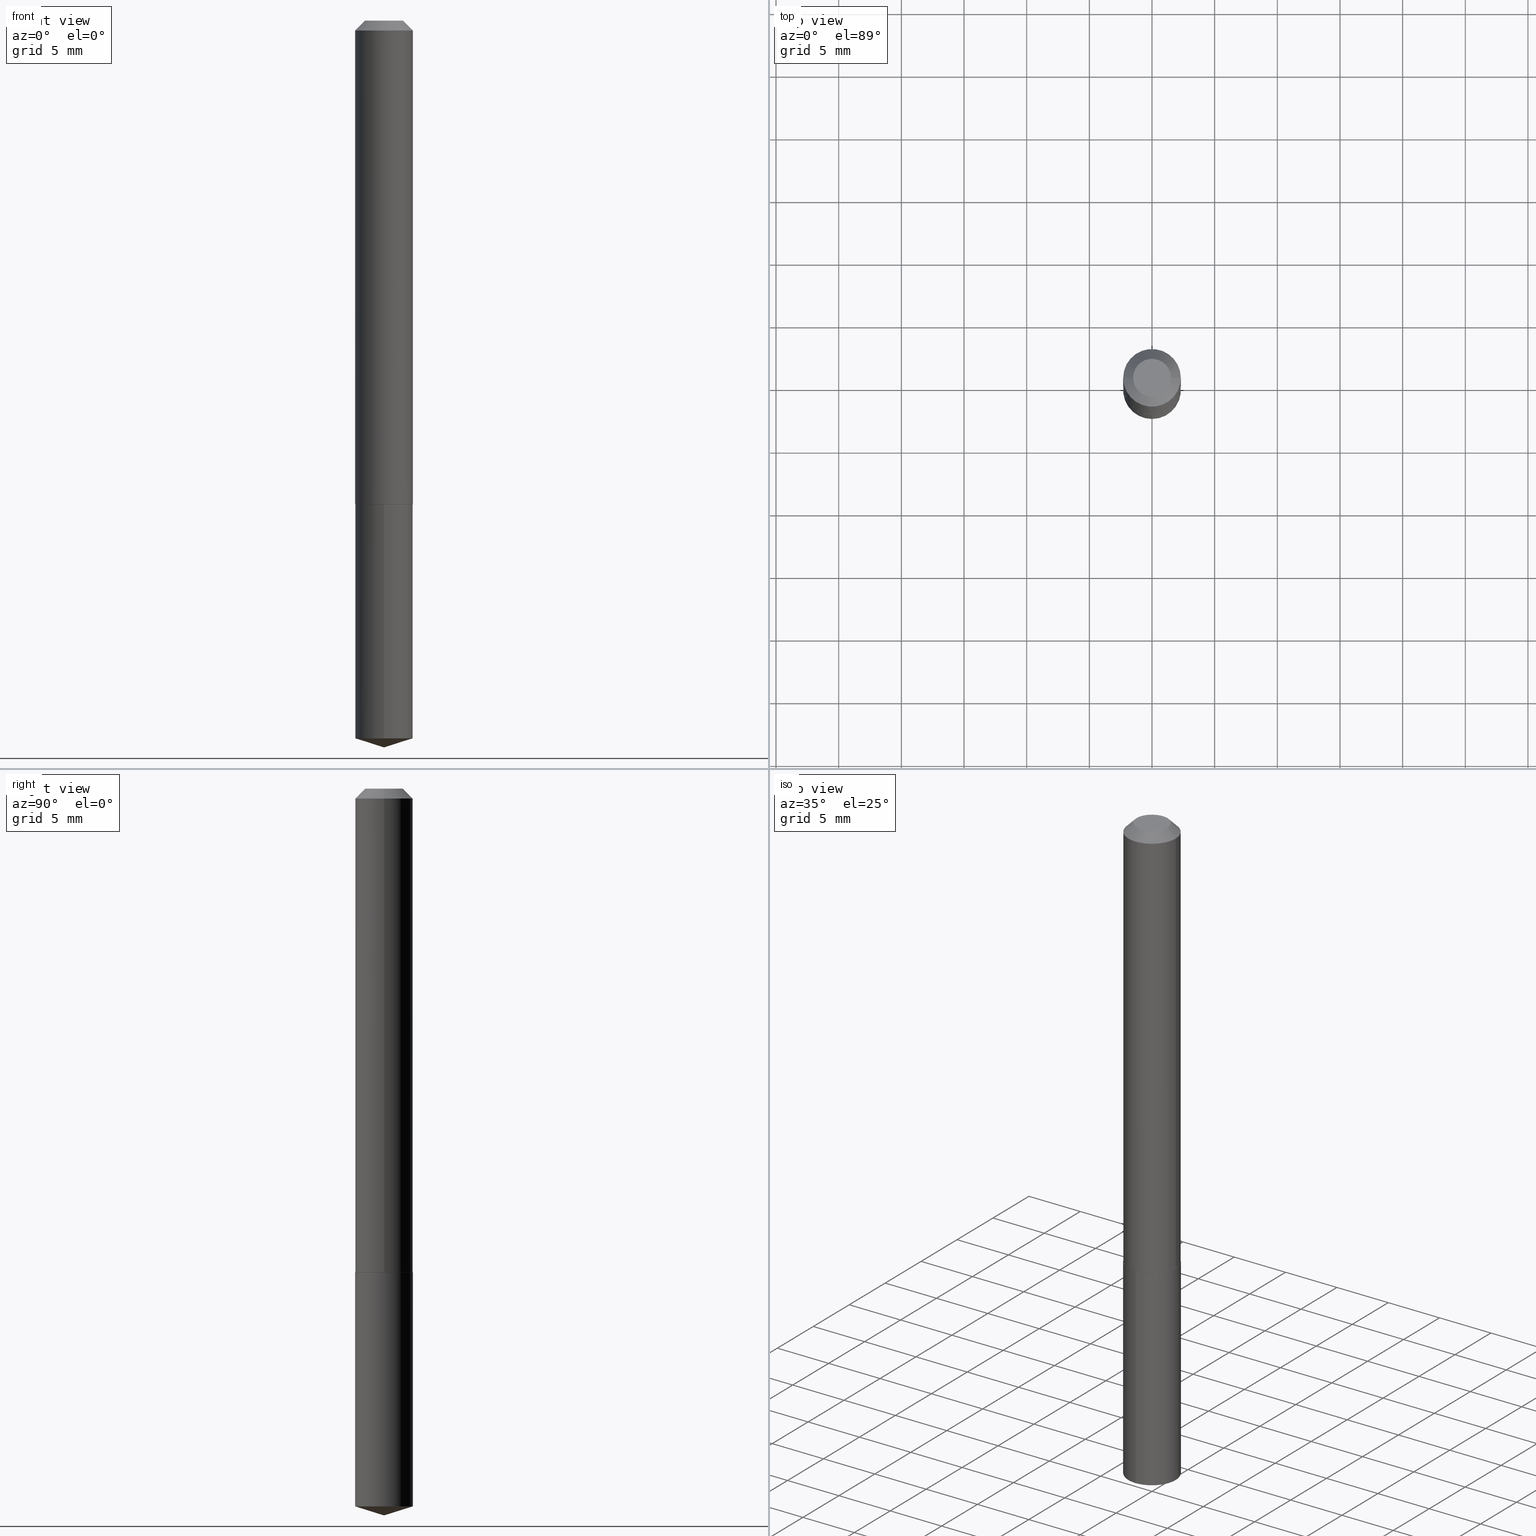
[diagram: canonical four-view strip — front | top / right | iso, engineering-drawing reading convention]
A machine part, canonical four-view strip (front | top / right | iso — engineering-drawing reading convention). The complete STEP part file that produces these views, byte-faithful:
ISO-10303-21;
HEADER;
FILE_DESCRIPTION (( 'STEP AP203' ),
    '1' );
FILE_NAME ('62103.STEP',
    '2024-04-23T06:00:47',
    ( '' ),
    ( '' ),
    'SwSTEP 2.0',
    'SolidWorks 2023',
    '' );
FILE_SCHEMA (( 'CONFIG_CONTROL_DESIGN' ));
ENDSEC;

DATA;
#1 = CALENDAR_DATE ( 2024, 23, 4 ) ;
#2 = CC_DESIGN_DATE_AND_TIME_ASSIGNMENT ( #252, #343, ( #349 ) ) ;
#3 = AXIS2_PLACEMENT_3D ( 'NONE', #21, #150, #62 ) ;
#4 = SHAPE_DEFINITION_REPRESENTATION ( #245, #382 ) ;
#5 = CARTESIAN_POINT ( 'NONE',  ( -9.020234421370649252E-28, 1.301912789641920276E-13, 37.08657874015747780 ) ) ;
#6 = EDGE_LOOP ( 'NONE', ( #344, #170 ) ) ;
#7 = AXIS2_PLACEMENT_3D ( 'NONE', #187, #259, #229 ) ;
#8 = EDGE_CURVE ( 'NONE', #370, #76, #227, .T. ) ;
#9 = EDGE_LOOP ( 'NONE', ( #274, #10, #50, #130 ) ) ;
#10 = ORIENTED_EDGE ( 'NONE', *, *, #255, .F. ) ;
#11 = VERTEX_POINT ( 'NONE', #83 ) ;
#12 = AXIS2_PLACEMENT_3D ( 'NONE', #263, #208, #207 ) ;
#13 = AXIS2_PLACEMENT_3D ( 'NONE', #107, #120, #205 ) ;
#14 = DIRECTION ( 'NONE',  ( -2.432731830762379629E-29, 3.509721412592153849E-15, 1.000000000000000000 ) ) ;
#15 = EDGE_LOOP ( 'NONE', ( #336, #374 ) ) ;
#16 = EDGE_CURVE ( 'NONE', #340, #366, #272, .T. ) ;
#17 = PLANE ( 'NONE',  #334 ) ;
#18 = CARTESIAN_POINT ( 'NONE',  ( 3.715156210356459952E-29, -5.304258449970507858E-15, -1.519200000000000328 ) ) ;
#19 = FACE_OUTER_BOUND ( 'NONE', #362, .T. ) ;
#20 = CARTESIAN_POINT ( 'NONE',  ( -0.09055000000000000548, -2.063287173673906046E-15, -0.03125000000000020123 ) ) ;
#21 = CARTESIAN_POINT ( 'NONE',  ( 0.000000000000000000, 0.000000000000000000, 0.000000000000000000 ) ) ;
#22 = APPROVAL_PERSON_ORGANIZATION ( #390, #88, #299 ) ;
#23 = CARTESIAN_POINT ( 'NONE',  ( 0.000000000000000000, 0.000000000000000000, 0.000000000000000000 ) ) ;
#24 = ADVANCED_FACE ( 'NONE', ( #235 ), #56, .T. ) ;
#25 = SECURITY_CLASSIFICATION ( '', '', #196 ) ;
#26 = DIRECTION ( 'NONE',  ( 1.000000000000000000, -6.982962677686272233E-15, 0.000000000000000000 ) ) ;
#27 = LENGTH_MEASURE_WITH_UNIT ( LENGTH_MEASURE( 0.02539999999999999897 ), #155 );
#28 = CARTESIAN_POINT ( 'NONE',  ( 3.715156210356459952E-29, -5.304258449970507858E-15, -1.519200000000000328 ) ) ;
#29 = CARTESIAN_POINT ( 'NONE',  ( 6.433964472308258789E-16, 0.09054999999999470417, -1.519700000000000495 ) ) ;
#30 = LINE ( 'NONE', #146, #309 ) ;
#31 = CLOSED_SHELL ( 'NONE', ( #361, #24, #313, #185, #49, #306, #147, #301 ) ) ;
#32 = LINE ( 'NONE', #99, #193 ) ;
#33 = VECTOR ( 'NONE', #266, 39.37007874015748143 ) ;
#34 = ADVANCED_FACE ( 'NONE', ( #346 ), #119, .T. ) ;
#35 = ORIENTED_EDGE ( 'NONE', *, *, #159, .F. ) ;
#36 = DATE_AND_TIME ( #1, #292 ) ;
#37 = DIRECTION ( 'NONE',  ( -2.445468806185136597E-29, 3.491481338843145583E-15, 1.000000000000000000 ) ) ;
#38 = DATE_TIME_ROLE ( 'classification_date' ) ;
#39 = ORIENTED_EDGE ( 'NONE', *, *, #212, .T. ) ;
#40 = CC_DESIGN_PERSON_AND_ORGANIZATION_ASSIGNMENT ( #202, #222, ( #303 ) ) ;
#41 = APPROVAL_STATUS ( 'not_yet_approved' ) ;
#42 = ORIENTED_EDGE ( 'NONE', *, *, #212, .F. ) ;
#43 = CC_DESIGN_APPROVAL ( #67, ( #25 ) ) ;
#44 = PERSON_AND_ORGANIZATION ( #91, #253 ) ;
#45 = ORIENTED_EDGE ( 'NONE', *, *, #65, .F. ) ;
#46 = DIRECTION ( 'NONE',  ( -2.432731830762379629E-29, 3.509721412592153849E-15, 1.000000000000000000 ) ) ;
#47 = EDGE_LOOP ( 'NONE', ( #254, #278, #338, #140 ) ) ;
#48 = PERSON_AND_ORGANIZATION ( #91, #253 ) ;
#49 = ADVANCED_FACE ( 'NONE', ( #204 ), #126, .T. ) ;
#50 = ORIENTED_EDGE ( 'NONE', *, *, #220, .T. ) ;
#51 = CONICAL_SURFACE ( 'NONE', #224, 0.09055000000000000548, 0.7853981633974456145 ) ;
#52 = DIRECTION ( 'NONE',  ( -2.445468806185136597E-29, 3.491481338843145583E-15, 1.000000000000000000 ) ) ;
#53 = CARTESIAN_POINT ( 'NONE',  ( -6.323072704644543931E-16, -0.09055000000000532068, -1.519699999999999829 ) ) ;
#54 = DIRECTION ( 'NONE',  ( 1.000000000000000000, -6.982962677686272233E-15, 0.000000000000000000 ) ) ;
#55 = LINE ( 'NONE', #184, #33 ) ;
#56 = CYLINDRICAL_SURFACE ( 'NONE', #371, 0.09055000000000011651 ) ;
#57 =( NAMED_UNIT ( * ) SI_UNIT ( $, .STERADIAN. ) SOLID_ANGLE_UNIT ( ) );
#58 = DIRECTION ( 'NONE',  ( -2.432731830762379629E-29, 3.509721412592153455E-15, 1.000000000000000000 ) ) ;
#59 = CARTESIAN_POINT ( 'NONE',  ( 2.328484636944500097E-46, -3.324458949184895393E-32, -9.521628863370667050E-18 ) ) ;
#60 = DIRECTION ( 'NONE',  ( 2.445468806185136597E-29, -3.491481338843145583E-15, -1.000000000000000000 ) ) ;
#61 = PLANE ( 'NONE',  #7 ) ;
#62 = DIRECTION ( 'NONE',  ( 1.000000000000000000, -6.982962677686265922E-15, 4.876176775795935232E-29 ) ) ;
#63 = DIRECTION ( 'NONE',  ( 1.000000000000000000, -6.982962677686267499E-15, 4.878054160638754682E-29 ) ) ;
#64 = DIRECTION ( 'NONE',  ( -2.445468806185136597E-29, 3.491481338843145583E-15, 1.000000000000000000 ) ) ;
#65 = EDGE_CURVE ( 'NONE', #136, #366, #265, .T. ) ;
#66 = AXIS2_PLACEMENT_3D ( 'NONE', #96, #14, #286 ) ;
#67 = APPROVAL ( #41, 'UNSPECIFIED' ) ;
#68 = PERSON_AND_ORGANIZATION ( #91, #253 ) ;
#69 = CARTESIAN_POINT ( 'NONE',  ( 4.656969273889000194E-46, -6.648917898369790786E-32, -1.904325772674133410E-17 ) ) ;
#70 = CIRCLE ( 'NONE', #248, 0.09055000000000001936 ) ;
#71 = COORDINATED_UNIVERSAL_TIME_OFFSET ( 5, 0, .BEHIND. ) ;
#72 = VERTEX_POINT ( 'NONE', #353 ) ;
#73 = PERSON_AND_ORGANIZATION ( #91, #253 ) ;
#74 = ORIENTED_EDGE ( 'NONE', *, *, #159, .T. ) ;
#75 = EDGE_CURVE ( 'NONE', #72, #136, #182, .T. ) ;
#76 = VERTEX_POINT ( 'NONE', #386 ) ;
#77 = DIMENSIONAL_EXPONENTS ( 1.000000000000000000, 0.000000000000000000, 0.000000000000000000, 0.000000000000000000, 0.000000000000000000, 0.000000000000000000, 0.000000000000000000 ) ;
#78 = ORIENTED_EDGE ( 'NONE', *, *, #335, .F. ) ;
#79 = APPROVAL_DATE_TIME ( #279, #198 ) ;
#80 = EDGE_CURVE ( 'NONE', #11, #76, #84, .T. ) ;
#81 = ORIENTED_EDGE ( 'NONE', *, *, #276, .F. ) ;
#82 = CARTESIAN_POINT ( 'NONE',  ( 0.09005000000000031035, -5.934819979765579402E-15, -1.519700000000000273 ) ) ;
#83 = CARTESIAN_POINT ( 'NONE',  ( -0.09055000000000021365, -4.660862002739735424E-15, -1.519200000000000328 ) ) ;
#84 = CIRCLE ( 'NONE', #237, 0.09055000000000021365 ) ;
#85 = CONICAL_SURFACE ( 'NONE', #13, 124.8659371009187282, 1.265363707695900120 ) ;
#86 =( CONVERSION_BASED_UNIT ( 'INCH', #27 ) LENGTH_UNIT ( ) NAMED_UNIT ( #77 ) );
#87 = LINE ( 'NONE', #267, #162 ) ;
#88 = APPROVAL ( #238, 'UNSPECIFIED' ) ;
#89 = CYLINDRICAL_SURFACE ( 'NONE', #365, 0.09055000000000000548 ) ;
#90 = DIRECTION ( 'NONE',  ( -2.432731830762379629E-29, 3.509721412592153849E-15, 1.000000000000000000 ) ) ;
#91 = PERSON ( 'UNSPECIFIED', 'UNSPECIFIED', 'UNSPECIFIED', ('UNSPECIFIED'), ('UNSPECIFIED'), ('UNSPECIFIED') ) ;
#92 = CARTESIAN_POINT ( 'NONE',  ( 7.642090019328600035E-31, -1.091087918388489897E-16, -0.03125000000000020123 ) ) ;
#93 = CARTESIAN_POINT ( 'NONE',  ( 3.716378944759552193E-29, -5.306004190639928573E-15, -1.519700000000000273 ) ) ;
#94 = PLANE ( 'NONE',  #165 ) ;
#95 = LOCAL_TIME ( 2, 0, 47.00000000000000000, #135 ) ;
#96 = CARTESIAN_POINT ( 'NONE',  ( 3.716378944759552193E-29, -5.306004190639928573E-15, -1.519700000000000273 ) ) ;
#97 = DIRECTION ( 'NONE',  ( -6.982962677686266711E-15, -1.000000000000000000, 3.016949744521549444E-15 ) ) ;
#98 = DIRECTION ( 'NONE',  ( -6.982962677686266711E-15, -1.000000000000000000, 3.016949744521549049E-15 ) ) ;
#99 = CARTESIAN_POINT ( 'NONE',  ( 0.09055000000000000548, -7.303268855370611839E-16, -0.03125000000000020123 ) ) ;
#100 = CARTESIAN_POINT ( 'NONE',  ( 3.715156210356459952E-29, -5.304258449970507858E-15, -1.519200000000000328 ) ) ;
#101 = PERSON_AND_ORGANIZATION_ROLE ( 'creator' ) ;
#102 = ORIENTED_EDGE ( 'NONE', *, *, #179, .F. ) ;
#103 = CIRCLE ( 'NONE', #105, 0.09055000000000000548 ) ;
#104 = APPLICATION_PROTOCOL_DEFINITION ( 'international standard', 'config_control_design', 1994, #209 ) ;
#105 = AXIS2_PLACEMENT_3D ( 'NONE', #92, #52, #380 ) ;
#106 = LOCAL_TIME ( 2, 0, 47.00000000000000000, #339 ) ;
#107 = CARTESIAN_POINT ( 'NONE',  ( -9.020234421370649252E-28, 1.301912789641920276E-13, 37.08657874015747780 ) ) ;
#108 = EDGE_CURVE ( 'NONE', #305, #340, #261, .T. ) ;
#109 = VERTEX_POINT ( 'NONE', #20 ) ;
#110 = ORIENTED_EDGE ( 'NONE', *, *, #321, .T. ) ;
#111 = ORIENTED_EDGE ( 'NONE', *, *, #220, .F. ) ;
#112 = VECTOR ( 'NONE', #145, 39.37007874015748143 ) ;
#113 = EDGE_LOOP ( 'NONE', ( #221, #249, #218 ) ) ;
#114 = DIRECTION ( 'NONE',  ( -0.7071067811865454633, 2.468850131082235761E-15, -0.7071067811865493491 ) ) ;
#115 =( NAMED_UNIT ( * ) PLANE_ANGLE_UNIT ( ) SI_UNIT ( $, .RADIAN. ) );
#116 = DIRECTION ( 'NONE',  ( -2.432731830762379629E-29, 3.509721412592153849E-15, 1.000000000000000000 ) ) ;
#117 = AXIS2_PLACEMENT_3D ( 'NONE', #18, #167, #290 ) ;
#118 = CARTESIAN_POINT ( 'NONE',  ( -0.09055000000000011651, 6.433964472307715461E-16, -4.454095724225822824E-30 ) ) ;
#119 = CYLINDRICAL_SURFACE ( 'NONE', #12, 0.09055000000000000548 ) ;
#120 = DIRECTION ( 'NONE',  ( -2.432731830762379629E-29, 3.509721412592153849E-15, 1.000000000000000000 ) ) ;
#121 = DIRECTION ( 'NONE',  ( -2.432731830762379629E-29, 3.509721412592153849E-15, 1.000000000000000000 ) ) ;
#122 = DIRECTION ( 'NONE',  ( 1.000000000000000000, -6.982962677686267499E-15, 4.878054160638754682E-29 ) ) ;
#123 = DIRECTION ( 'NONE',  ( 1.000000000000000000, -6.982962677686266711E-15, 0.000000000000000000 ) ) ;
#124 = DIRECTION ( 'NONE',  ( -2.432731830762379629E-29, 3.509721412592153455E-15, 1.000000000000000000 ) ) ;
#125 = CC_DESIGN_DATE_AND_TIME_ASSIGNMENT ( #217, #38, ( #25 ) ) ;
#126 = CONICAL_SURFACE ( 'NONE', #333, 0.09055000000000021365, 0.7853981633974482790 ) ;
#127 = AXIS2_PLACEMENT_3D ( 'NONE', #69, #329, #63 ) ;
#128 = APPLICATION_PROTOCOL_DEFINITION ( 'international standard', 'config_control_design', 1994, #143 ) ;
#129 = DIRECTION ( 'NONE',  ( -2.445468806185136597E-29, 3.491481338843145583E-15, 1.000000000000000000 ) ) ;
#130 = ORIENTED_EDGE ( 'NONE', *, *, #367, .T. ) ;
#131 = PRODUCT_RELATED_PRODUCT_CATEGORY ( 'detail', '', ( #273 ) ) ;
#132 = CC_DESIGN_APPROVAL ( #88, ( #349 ) ) ;
#133 = DIRECTION ( 'NONE',  ( 1.000000000000000000, -6.982962677686269077E-15, 0.000000000000000000 ) ) ;
#134 = APPROVAL_ROLE ( '' ) ;
#135 = COORDINATED_UNIVERSAL_TIME_OFFSET ( 5, 0, .BEHIND. ) ;
#136 = VERTEX_POINT ( 'NONE', #287 ) ;
#137 = MANIFOLD_SOLID_BREP ( 'Body-Move/Copy2[2]', #31 ) ;
#138 = ORIENTED_EDGE ( 'NONE', *, *, #239, .T. ) ;
#139 = CC_DESIGN_PERSON_AND_ORGANIZATION_ASSIGNMENT ( #68, #101, ( #349 ) ) ;
#140 = ORIENTED_EDGE ( 'NONE', *, *, #367, .F. ) ;
#141 = EDGE_LOOP ( 'NONE', ( #225, #191, #35 ) ) ;
#142 = APPROVAL_PERSON_ORGANIZATION ( #226, #198, #373 ) ;
#143 = APPLICATION_CONTEXT ( 'configuration controlled 3d designs of mechanical parts and assemblies' ) ;
#144 = ORIENTED_EDGE ( 'NONE', *, *, #288, .T. ) ;
#145 = DIRECTION ( 'NONE',  ( -2.445468806185136877E-29, 3.491481338843145188E-15, 1.000000000000000000 ) ) ;
#146 = CARTESIAN_POINT ( 'NONE',  ( -0.09055000000000021365, -4.660862002739735424E-15, -1.519200000000000328 ) ) ;
#147 = ADVANCED_FACE ( 'NONE', ( #325 ), #318, .T. ) ;
#148 = CARTESIAN_POINT ( 'NONE',  ( 7.642090019328600035E-31, -1.091087918388489897E-16, -0.03125000000000020123 ) ) ;
#149 = CARTESIAN_POINT ( 'NONE',  ( 5.505044280534305180E-29, -7.886525787614573716E-15, -2.254949694667009119 ) ) ;
#150 = DIRECTION ( 'NONE',  ( -2.445468806185136597E-29, 3.491481338843145583E-15, 1.000000000000000000 ) ) ;
#151 = CIRCLE ( 'NONE', #372, 0.09005000000000031035 ) ;
#152 = DIRECTION ( 'NONE',  ( 6.776566513254273126E-15, 0.9537169507482312625, 0.3007057995042590748 ) ) ;
#153 = DIRECTION ( 'NONE',  ( -1.000000000000000000, 6.982962677686266711E-15, 0.000000000000000000 ) ) ;
#154 = DIRECTION ( 'NONE',  ( -2.432731830762379629E-29, 3.509721412592153849E-15, 1.000000000000000000 ) ) ;
#155 =( LENGTH_UNIT ( ) NAMED_UNIT ( * ) SI_UNIT ( $, .METRE. ) );
#156 = DIRECTION ( 'NONE',  ( -0.7071067811865474617, 7.493145998870352582E-15, 0.7071067811865474617 ) ) ;
#157 = CONICAL_SURFACE ( 'NONE', #341, 0.09055000000000021365, 0.7853981633974482790 ) ;
#158 = CARTESIAN_POINT ( 'NONE',  ( 3.716378944759552193E-29, -5.306004190639928573E-15, -1.519700000000000273 ) ) ;
#159 = EDGE_CURVE ( 'NONE', #305, #136, #70, .T. ) ;
#160 = ORIENTED_EDGE ( 'NONE', *, *, #8, .F. ) ;
#161 = CARTESIAN_POINT ( 'NONE',  ( -0.09005000000000031035, -4.663511229913846626E-15, -1.519700000000000273 ) ) ;
#162 = VECTOR ( 'NONE', #114, 39.37007874015748854 ) ;
#163 = APPROVAL_DATE_TIME ( #304, #67 ) ;
#164 = EDGE_LOOP ( 'NONE', ( #195, #203 ) ) ;
#165 = AXIS2_PLACEMENT_3D ( 'NONE', #59, #294, #359 ) ;
#166 = ORIENTED_EDGE ( 'NONE', *, *, #16, .F. ) ;
#167 = DIRECTION ( 'NONE',  ( -2.445468806185136597E-29, 3.491481338843145583E-15, 1.000000000000000000 ) ) ;
#168 = UNCERTAINTY_MEASURE_WITH_UNIT (LENGTH_MEASURE( 1.000000000000000082E-05 ), #86, 'distance_accuracy_value', 'NONE');
#169 = CALENDAR_DATE ( 2024, 23, 4 ) ;
#170 = ORIENTED_EDGE ( 'NONE', *, *, #239, .F. ) ;
#171 = FACE_OUTER_BOUND ( 'NONE', #141, .T. ) ;
#172 = EDGE_LOOP ( 'NONE', ( #42, #138, #300, #282 ) ) ;
#173 = PERSON_AND_ORGANIZATION_ROLE ( 'classification_officer' ) ;
#174 = ORIENTED_EDGE ( 'NONE', *, *, #244, .T. ) ;
#175 = AXIS2_PLACEMENT_3D ( 'NONE', #5, #46, #315 ) ;
#176 = LOCAL_TIME ( 2, 0, 47.00000000000000000, #283 ) ;
#177 = FACE_OUTER_BOUND ( 'NONE', #240, .T. ) ;
#178 = DIRECTION ( 'NONE',  ( -2.445468806185136597E-29, 3.491481338843145583E-15, 1.000000000000000000 ) ) ;
#179 = EDGE_CURVE ( 'NONE', #280, #251, #190, .T. ) ;
#180 = PERSON_AND_ORGANIZATION ( #91, #253 ) ;
#181 = CARTESIAN_POINT ( 'NONE',  ( 0.000000000000000000, 0.000000000000000000, 0.000000000000000000 ) ) ;
#182 = LINE ( 'NONE', #291, #268 ) ;
#183 = AXIS2_PLACEMENT_3D ( 'NONE', #377, #116, #351 ) ;
#184 = CARTESIAN_POINT ( 'NONE',  ( 0.09055000000000011651, -6.323072704644921598E-16, 4.415378070483225012E-30 ) ) ;
#185 = ADVANCED_FACE ( 'NONE', ( #354 ), #17, .F. ) ;
#186 = DIRECTION ( 'NONE',  ( -2.438088387897960049E-29, 3.491481338843145188E-15, 1.000000000000000000 ) ) ;
#187 = CARTESIAN_POINT ( 'NONE',  ( 3.716378944759552193E-29, -5.306004190639928573E-15, -1.519700000000000273 ) ) ;
#188 = FACE_OUTER_BOUND ( 'NONE', #113, .T. ) ;
#189 = CYLINDRICAL_SURFACE ( 'NONE', #3, 0.09055000000000011651 ) ;
#190 = CIRCLE ( 'NONE', #298, 0.05929999999999999855 ) ;
#191 = ORIENTED_EDGE ( 'NONE', *, *, #75, .T. ) ;
#192 = DIRECTION ( 'NONE',  ( 1.000000000000000000, -6.982962677686272233E-15, 0.000000000000000000 ) ) ;
#193 = VECTOR ( 'NONE', #243, 39.37007874015748854 ) ;
#194 = ADVANCED_FACE ( 'NONE', ( #328 ), #61, .F. ) ;
#195 = ORIENTED_EDGE ( 'NONE', *, *, #16, .T. ) ;
#196 = SECURITY_CLASSIFICATION_LEVEL ( 'unclassified' ) ;
#197 = EDGE_LOOP ( 'NONE', ( #144, #223, #81, #78 ) ) ;
#198 = APPROVAL ( #312, 'UNSPECIFIED' ) ;
#199 =( GEOMETRIC_REPRESENTATION_CONTEXT ( 3 ) GLOBAL_UNCERTAINTY_ASSIGNED_CONTEXT ( ( #168 ) ) GLOBAL_UNIT_ASSIGNED_CONTEXT ( ( #86, #115, #57 ) ) REPRESENTATION_CONTEXT ( 'NONE', 'WORKASPACE' ) );
#200 = ORIENTED_EDGE ( 'NONE', *, *, #281, .F. ) ;
#201 = EDGE_LOOP ( 'NONE', ( #110, #39, #316, #160 ) ) ;
#202 = PERSON_AND_ORGANIZATION ( #91, #253 ) ;
#203 = ORIENTED_EDGE ( 'NONE', *, *, #281, .T. ) ;
#204 = FACE_OUTER_BOUND ( 'NONE', #172, .T. ) ;
#205 = DIRECTION ( 'NONE',  ( -6.982962677686267499E-15, -1.000000000000000000, 3.500519750498601880E-15 ) ) ;
#206 = CARTESIAN_POINT ( 'NONE',  ( 3.716378944759552193E-29, -5.306004190639928573E-15, -1.519700000000000273 ) ) ;
#207 = DIRECTION ( 'NONE',  ( -6.982962677686266711E-15, -1.000000000000000000, 3.016949744521549444E-15 ) ) ;
#208 = DIRECTION ( 'NONE',  ( -2.432731830762379629E-29, 3.509721412592153849E-15, 1.000000000000000000 ) ) ;
#209 = APPLICATION_CONTEXT ( 'configuration controlled 3d designs of mechanical parts and assemblies' ) ;
#210 = DIRECTION ( 'NONE',  ( 1.000000000000000000, -6.982962677686265922E-15, 4.876176775795935793E-29 ) ) ;
#211 = PERSON_AND_ORGANIZATION_ROLE ( 'design_owner' ) ;
#212 = EDGE_CURVE ( 'NONE', #241, #11, #30, .T. ) ;
#213 = CLOSED_SHELL ( 'NONE', ( #34, #271, #260, #376, #194 ) ) ;
#214 = AXIS2_PLACEMENT_3D ( 'NONE', #158, #129, #270 ) ;
#215 = EDGE_CURVE ( 'NONE', #136, #305, #357, .T. ) ;
#216 = CARTESIAN_POINT ( 'NONE',  ( 3.716378944759552193E-29, -5.306004190639928573E-15, -1.519700000000000273 ) ) ;
#217 = DATE_AND_TIME ( #307, #176 ) ;
#218 = ORIENTED_EDGE ( 'NONE', *, *, #215, .F. ) ;
#219 = PERSON_AND_ORGANIZATION_ROLE ( 'design_supplier' ) ;
#220 = EDGE_CURVE ( 'NONE', #251, #109, #87, .T. ) ;
#221 = ORIENTED_EDGE ( 'NONE', *, *, #75, .F. ) ;
#222 = PERSON_AND_ORGANIZATION_ROLE ( 'creator' ) ;
#223 = ORIENTED_EDGE ( 'NONE', *, *, #331, .T. ) ;
#224 = AXIS2_PLACEMENT_3D ( 'NONE', #148, #60, #153 ) ;
#225 = ORIENTED_EDGE ( 'NONE', *, *, #364, .F. ) ;
#226 = PERSON_AND_ORGANIZATION ( #91, #253 ) ;
#227 = LINE ( 'NONE', #285, #246 ) ;
#228 = CC_DESIGN_PERSON_AND_ORGANIZATION_ASSIGNMENT ( #73, #219, ( #303 ) ) ;
#229 = DIRECTION ( 'NONE',  ( 6.982962677686265922E-15, 1.000000000000000000, -3.509721412592153455E-15 ) ) ;
#230 = DIRECTION ( 'NONE',  ( -1.000000000000000000, 6.982962677686266711E-15, 0.000000000000000000 ) ) ;
#231 = CIRCLE ( 'NONE', #66, 0.09055000000000000548 ) ;
#232 = CARTESIAN_POINT ( 'NONE',  ( -6.323072704644543931E-16, -0.09055000000000532068, -1.519699999999999829 ) ) ;
#233 = CARTESIAN_POINT ( 'NONE',  ( 6.433964472308077351E-16, 0.09054999999999470417, -1.519700000000000495 ) ) ;
#234 = CARTESIAN_POINT ( 'NONE',  ( 7.642090019328600035E-31, -1.091087918388489897E-16, -0.03125000000000020123 ) ) ;
#235 = FACE_OUTER_BOUND ( 'NONE', #197, .T. ) ;
#236 = CARTESIAN_POINT ( 'NONE',  ( 7.642090019328600035E-31, -1.091087918388489897E-16, -0.03125000000000020123 ) ) ;
#237 = AXIS2_PLACEMENT_3D ( 'NONE', #289, #319, #54 ) ;
#238 = APPROVAL_STATUS ( 'not_yet_approved' ) ;
#239 = EDGE_CURVE ( 'NONE', #241, #370, #151, .T. ) ;
#240 = EDGE_LOOP ( 'NONE', ( #45, #311, #308, #200 ) ) ;
#241 = VERTEX_POINT ( 'NONE', #161 ) ;
#242 = AXIS2_PLACEMENT_3D ( 'NONE', #23, #385, #347 ) ;
#243 = DIRECTION ( 'NONE',  ( 0.7071067811865454633, -7.319954787623246579E-15, -0.7071067811865493491 ) ) ;
#244 = EDGE_CURVE ( 'NONE', #280, #375, #32, .T. ) ;
#245 = PRODUCT_DEFINITION_SHAPE ( 'NONE', 'NONE',  #349 ) ;
#246 = VECTOR ( 'NONE', #356, 39.37007874015748854 ) ;
#247 = CALENDAR_DATE ( 2024, 23, 4 ) ;
#248 = AXIS2_PLACEMENT_3D ( 'NONE', #149, #90, #98 ) ;
#249 = ORIENTED_EDGE ( 'NONE', *, *, #364, .T. ) ;
#250 = ORIENTED_EDGE ( 'NONE', *, *, #108, .F. ) ;
#251 = VERTEX_POINT ( 'NONE', #363 ) ;
#252 = DATE_AND_TIME ( #342, #95 ) ;
#253 = ORGANIZATION ( 'UNSPECIFIED', 'UNSPECIFIED', '' ) ;
#254 = ORIENTED_EDGE ( 'NONE', *, *, #331, .F. ) ;
#255 = EDGE_CURVE ( 'NONE', #251, #280, #330, .T. ) ;
#256 = DIRECTION ( 'NONE',  ( -2.445468806185136597E-29, 3.491481338843145583E-15, 1.000000000000000000 ) ) ;
#257 = ORIENTED_EDGE ( 'NONE', *, *, #276, .T. ) ;
#258 = CARTESIAN_POINT ( 'NONE',  ( 5.555143135545894169E-29, -8.014448845654183524E-15, -2.283500000000000085 ) ) ;
#259 = DIRECTION ( 'NONE',  ( 2.432731830762379629E-29, -3.509721412592153455E-15, -1.000000000000000000 ) ) ;
#260 = ADVANCED_FACE ( 'NONE', ( #188 ), #326, .T. ) ;
#261 = LINE ( 'NONE', #53, #348 ) ;
#262 = VECTOR ( 'NONE', #352, 39.37007874015748854 ) ;
#263 = CARTESIAN_POINT ( 'NONE',  ( 3.716378944759552193E-29, -5.306004190639928573E-15, -1.519700000000000273 ) ) ;
#264 = LINE ( 'NONE', #258, #262 ) ;
#265 = LINE ( 'NONE', #233, #387 ) ;
#266 = DIRECTION ( 'NONE',  ( -2.445468806185136877E-29, 3.491481338843145188E-15, 1.000000000000000000 ) ) ;
#267 = CARTESIAN_POINT ( 'NONE',  ( -0.09055000000000000548, 5.231984786256424675E-16, -0.03125000000000020123 ) ) ;
#268 = VECTOR ( 'NONE', #152, 39.37007874015748854 ) ;
#269 = AXIS2_PLACEMENT_3D ( 'NONE', #234, #256, #123 ) ;
#270 = DIRECTION ( 'NONE',  ( 1.000000000000000000, -6.982962677686269077E-15, 0.000000000000000000 ) ) ;
#271 = ADVANCED_FACE ( 'NONE', ( #171 ), #85, .T. ) ;
#272 = CIRCLE ( 'NONE', #275, 0.09055000000000000548 ) ;
#273 = PRODUCT ( '62103', '62103', '', ( #345 ) ) ;
#274 = ORIENTED_EDGE ( 'NONE', *, *, #244, .F. ) ;
#275 = AXIS2_PLACEMENT_3D ( 'NONE', #93, #154, #293 ) ;
#276 = EDGE_CURVE ( 'NONE', #375, #109, #388, .T. ) ;
#277 = CIRCLE ( 'NONE', #117, 0.09055000000000021365 ) ;
#278 = ORIENTED_EDGE ( 'NONE', *, *, #80, .T. ) ;
#279 = DATE_AND_TIME ( #247, #106 ) ;
#280 = VERTEX_POINT ( 'NONE', #355 ) ;
#281 = EDGE_CURVE ( 'NONE', #366, #340, #231, .T. ) ;
#282 = ORIENTED_EDGE ( 'NONE', *, *, #80, .F. ) ;
#283 = COORDINATED_UNIVERSAL_TIME_OFFSET ( 5, 0, .BEHIND. ) ;
#284 = CIRCLE ( 'NONE', #214, 0.09005000000000031035 ) ;
#285 = CARTESIAN_POINT ( 'NONE',  ( 0.09055000000000021365, -5.936565720435000905E-15, -1.519200000000000328 ) ) ;
#286 = DIRECTION ( 'NONE',  ( -6.982962677686266711E-15, -1.000000000000000000, 3.016949744521549444E-15 ) ) ;
#287 = CARTESIAN_POINT ( 'NONE',  ( 6.433964472308259775E-16, 0.09054999999999215066, -2.254949694667009563 ) ) ;
#288 = EDGE_CURVE ( 'NONE', #76, #11, #277, .T. ) ;
#289 = CARTESIAN_POINT ( 'NONE',  ( 3.715156210356459952E-29, -5.304258449970507858E-15, -1.519200000000000328 ) ) ;
#290 = DIRECTION ( 'NONE',  ( 1.000000000000000000, -6.982962677686272233E-15, 0.000000000000000000 ) ) ;
#291 = CARTESIAN_POINT ( 'NONE',  ( 5.594195363881459271E-29, -7.959009965501448048E-15, -2.283500000000000085 ) ) ;
#292 = LOCAL_TIME ( 2, 0, 47.00000000000000000, #302 ) ;
#293 = DIRECTION ( 'NONE',  ( -6.982962677686266711E-15, -1.000000000000000000, 3.016949744521549444E-15 ) ) ;
#294 = DIRECTION ( 'NONE',  ( 2.438088387897960049E-29, -3.491481338843145188E-15, -1.000000000000000000 ) ) ;
#295 = DIRECTION ( 'NONE',  ( 1.000000000000000000, -6.982962677686265922E-15, 4.876176775795935232E-29 ) ) ;
#296 = FACE_OUTER_BOUND ( 'NONE', #201, .T. ) ;
#297 = CC_DESIGN_PERSON_AND_ORGANIZATION_ASSIGNMENT ( #48, #173, ( #25 ) ) ;
#298 = AXIS2_PLACEMENT_3D ( 'NONE', #381, #178, #122 ) ;
#299 = APPROVAL_ROLE ( '' ) ;
#300 = ORIENTED_EDGE ( 'NONE', *, *, #8, .T. ) ;
#301 = ADVANCED_FACE ( 'NONE', ( #389 ), #94, .F. ) ;
#302 = COORDINATED_UNIVERSAL_TIME_OFFSET ( 5, 0, .BEHIND. ) ;
#303 = PRODUCT_DEFINITION_FORMATION_WITH_SPECIFIED_SOURCE ( 'ANY', '', #273, .NOT_KNOWN. ) ;
#304 = DATE_AND_TIME ( #169, #358 ) ;
#305 = VERTEX_POINT ( 'NONE', #323 ) ;
#306 = ADVANCED_FACE ( 'NONE', ( #360 ), #189, .T. ) ;
#307 = CALENDAR_DATE ( 2024, 23, 4 ) ;
#308 = ORIENTED_EDGE ( 'NONE', *, *, #108, .T. ) ;
#309 = VECTOR ( 'NONE', #156, 39.37007874015748854 ) ;
#310 = APPROVAL_PERSON_ORGANIZATION ( #44, #67, #134 ) ;
#311 = ORIENTED_EDGE ( 'NONE', *, *, #215, .T. ) ;
#312 = APPROVAL_STATUS ( 'not_yet_approved' ) ;
#313 = ADVANCED_FACE ( 'NONE', ( #296 ), #157, .T. ) ;
#314 = ORIENTED_EDGE ( 'NONE', *, *, #65, .T. ) ;
#315 = DIRECTION ( 'NONE',  ( -6.982962677686267499E-15, -1.000000000000000000, 3.500519750498601880E-15 ) ) ;
#316 = ORIENTED_EDGE ( 'NONE', *, *, #288, .F. ) ;
#317 = CARTESIAN_POINT ( 'NONE',  ( 3.716378944759552193E-29, -5.306004190639928573E-15, -1.519700000000000273 ) ) ;
#318 = CONICAL_SURFACE ( 'NONE', #378, 0.09055000000000000548, 0.7853981633974456145 ) ;
#319 = DIRECTION ( 'NONE',  ( -2.445468806185136597E-29, 3.491481338843145583E-15, 1.000000000000000000 ) ) ;
#320 = DIRECTION ( 'NONE',  ( -2.445468806185136597E-29, 3.491481338843145583E-15, 1.000000000000000000 ) ) ;
#321 = EDGE_CURVE ( 'NONE', #370, #241, #284, .T. ) ;
#322 = DIRECTION ( 'NONE',  ( 2.445468806185136597E-29, -3.491481338843145583E-15, -1.000000000000000000 ) ) ;
#323 = CARTESIAN_POINT ( 'NONE',  ( -6.323072704644365451E-16, -0.09055000000000791582, -2.254949694667009119 ) ) ;
#324 = CARTESIAN_POINT ( 'NONE',  ( 0.09055000000000000548, -7.414160623033403730E-16, -0.03125000000000020123 ) ) ;
#325 = FACE_OUTER_BOUND ( 'NONE', #9, .T. ) ;
#326 = CONICAL_SURFACE ( 'NONE', #175, 124.8659371009187282, 1.265363707695900120 ) ;
#327 = CC_DESIGN_APPROVAL ( #198, ( #303 ) ) ;
#328 = FACE_OUTER_BOUND ( 'NONE', #164, .T. ) ;
#329 = DIRECTION ( 'NONE',  ( -2.445468806185136597E-29, 3.491481338843145583E-15, 1.000000000000000000 ) ) ;
#330 = CIRCLE ( 'NONE', #127, 0.05929999999999999855 ) ;
#331 = EDGE_CURVE ( 'NONE', #11, #109, #369, .T. ) ;
#332 = APPROVAL_DATE_TIME ( #36, #88 ) ;
#333 = AXIS2_PLACEMENT_3D ( 'NONE', #28, #320, #26 ) ;
#334 = AXIS2_PLACEMENT_3D ( 'NONE', #206, #186, #210 ) ;
#335 = EDGE_CURVE ( 'NONE', #76, #375, #55, .T. ) ;
#336 = ORIENTED_EDGE ( 'NONE', *, *, #255, .T. ) ;
#337 = DESIGN_CONTEXT ( 'detailed design', #209, 'design' ) ;
#338 = ORIENTED_EDGE ( 'NONE', *, *, #335, .T. ) ;
#339 = COORDINATED_UNIVERSAL_TIME_OFFSET ( 5, 0, .BEHIND. ) ;
#340 = VERTEX_POINT ( 'NONE', #232 ) ;
#341 = AXIS2_PLACEMENT_3D ( 'NONE', #100, #64, #192 ) ;
#342 = CALENDAR_DATE ( 2024, 23, 4 ) ;
#343 = DATE_TIME_ROLE ( 'creation_date' ) ;
#344 = ORIENTED_EDGE ( 'NONE', *, *, #321, .F. ) ;
#345 = MECHANICAL_CONTEXT ( 'NONE', #143, 'mechanical' ) ;
#346 = FACE_OUTER_BOUND ( 'NONE', #368, .T. ) ;
#347 = DIRECTION ( 'NONE',  ( 1.000000000000000000, 0.000000000000000000, 0.000000000000000000 ) ) ;
#348 = VECTOR ( 'NONE', #124, 39.37007874015748143 ) ;
#349 = PRODUCT_DEFINITION ( 'UNKNOWN', '', #303, #337 ) ;
#350 = CC_DESIGN_SECURITY_CLASSIFICATION ( #25, ( #303 ) ) ;
#351 = DIRECTION ( 'NONE',  ( -6.982962677686266711E-15, -1.000000000000000000, 3.016949744521549049E-15 ) ) ;
#352 = DIRECTION ( 'NONE',  ( -6.659769872151650232E-15, -0.9537169507482292641, 0.3007057995042657916 ) ) ;
#353 = CARTESIAN_POINT ( 'NONE',  ( 5.555143135545894169E-29, -8.014448845654183524E-15, -2.283500000000000085 ) ) ;
#354 = FACE_OUTER_BOUND ( 'NONE', #6, .T. ) ;
#355 = CARTESIAN_POINT ( 'NONE',  ( 0.05929999999999999855, -5.685772084024565515E-16, -1.904325772673789824E-17 ) ) ;
#356 = DIRECTION ( 'NONE',  ( 0.7071067811865474617, -2.468850131082256666E-15, 0.7071067811865474617 ) ) ;
#357 = CIRCLE ( 'NONE', #183, 0.09055000000000001936 ) ;
#358 = LOCAL_TIME ( 2, 0, 47.00000000000000000, #71 ) ;
#359 = DIRECTION ( 'NONE',  ( -1.000000000000000000, 6.982962677686265922E-15, -4.876176775795935793E-29 ) ) ;
#360 = FACE_OUTER_BOUND ( 'NONE', #47, .T. ) ;
#361 = ADVANCED_FACE ( 'NONE', ( #19 ), #51, .T. ) ;
#362 = EDGE_LOOP ( 'NONE', ( #102, #174, #257, #111 ) ) ;
#363 = CARTESIAN_POINT ( 'NONE',  ( -0.05929999999999999855, 4.686440827062190019E-16, -1.904325772674442175E-17 ) ) ;
#364 = EDGE_CURVE ( 'NONE', #72, #305, #264, .T. ) ;
#365 = AXIS2_PLACEMENT_3D ( 'NONE', #317, #121, #97 ) ;
#366 = VERTEX_POINT ( 'NONE', #29 ) ;
#367 = EDGE_CURVE ( 'NONE', #109, #375, #103, .T. ) ;
#368 = EDGE_LOOP ( 'NONE', ( #74, #314, #166, #250 ) ) ;
#369 = LINE ( 'NONE', #118, #112 ) ;
#370 = VERTEX_POINT ( 'NONE', #82 ) ;
#371 = AXIS2_PLACEMENT_3D ( 'NONE', #181, #379, #295 ) ;
#372 = AXIS2_PLACEMENT_3D ( 'NONE', #216, #37, #133 ) ;
#373 = APPROVAL_ROLE ( '' ) ;
#374 = ORIENTED_EDGE ( 'NONE', *, *, #179, .T. ) ;
#375 = VERTEX_POINT ( 'NONE', #324 ) ;
#376 = ADVANCED_FACE ( 'NONE', ( #177 ), #89, .T. ) ;
#377 = CARTESIAN_POINT ( 'NONE',  ( 5.505044280534305180E-29, -7.886525787614573716E-15, -2.254949694667009119 ) ) ;
#378 = AXIS2_PLACEMENT_3D ( 'NONE', #236, #322, #230 ) ;
#379 = DIRECTION ( 'NONE',  ( -2.445468806185136597E-29, 3.491481338843145583E-15, 1.000000000000000000 ) ) ;
#380 = DIRECTION ( 'NONE',  ( 1.000000000000000000, -6.982962677686266711E-15, 0.000000000000000000 ) ) ;
#381 = CARTESIAN_POINT ( 'NONE',  ( 4.656969273889000194E-46, -6.648917898369790786E-32, -1.904325772674133410E-17 ) ) ;
#382 = ADVANCED_BREP_SHAPE_REPRESENTATION ( '62103', ( #384, #137, #242 ), #199 ) ;
#383 = CC_DESIGN_PERSON_AND_ORGANIZATION_ASSIGNMENT ( #180, #211, ( #273 ) ) ;
#384 = MANIFOLD_SOLID_BREP ( 'Body-Move/Copy2[1]', #213 ) ;
#385 = DIRECTION ( 'NONE',  ( 0.000000000000000000, 0.000000000000000000, 1.000000000000000000 ) ) ;
#386 = CARTESIAN_POINT ( 'NONE',  ( 0.09055000000000021365, -5.936565720435000905E-15, -1.519200000000000328 ) ) ;
#387 = VECTOR ( 'NONE', #58, 39.37007874015748143 ) ;
#388 = CIRCLE ( 'NONE', #269, 0.09055000000000000548 ) ;
#389 = FACE_OUTER_BOUND ( 'NONE', #15, .T. ) ;
#390 = PERSON_AND_ORGANIZATION ( #91, #253 ) ;
ENDSEC;
END-ISO-10303-21;
